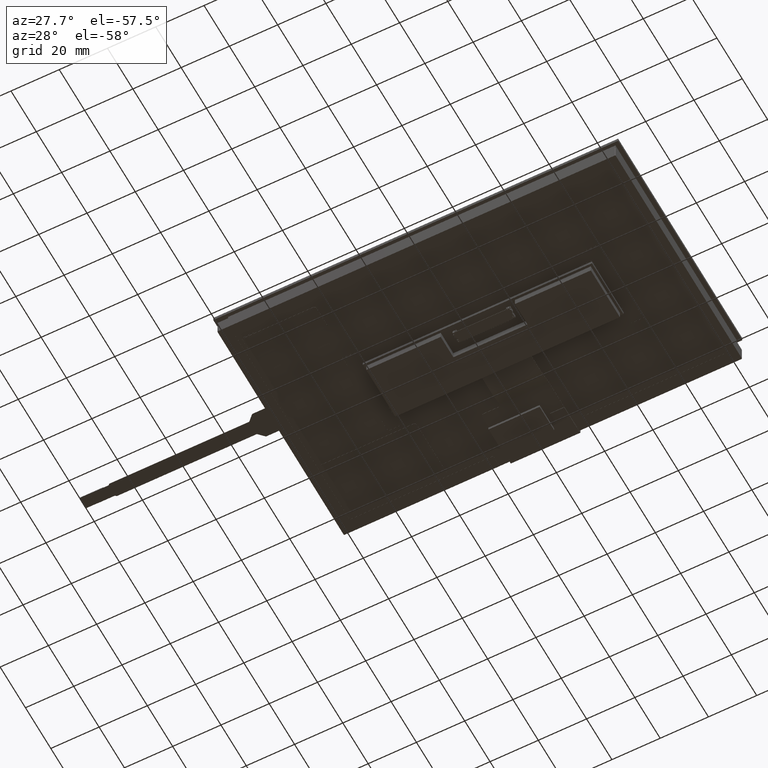
[diagram: clean part render]
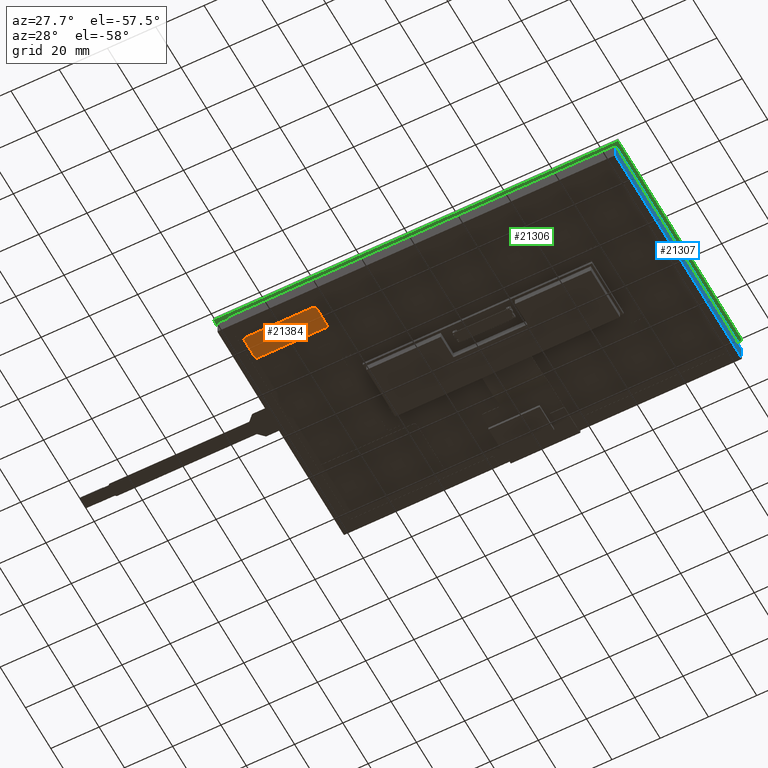
[diagram: same view with three faces highlighted in distinct colors, each labeled with its STEP entity id]
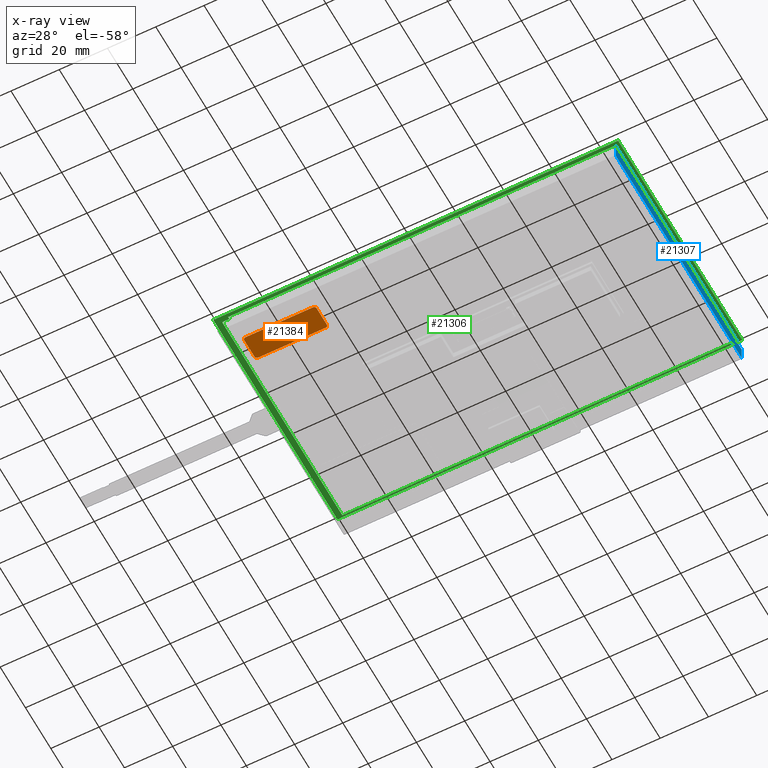
[diagram: x-ray of the same camera — body ghosted, the three highlighted faces saturated]
A machine part, auxiliary view with three faces highlighted in distinct colors.
The next image is the same camera in x-ray (body ghosted, the three faces saturated) — at least one of them is partly hidden behind the body in this view.
Their STEP definitions:

[orange] entity #21384 — the highlighted planar face has unit normal (0, 0, 1).
#145=CIRCLE('',#22569,1.);
#147=CIRCLE('',#22573,1.00000000000003);
#149=CIRCLE('',#22577,0.999999999999999);
#151=CIRCLE('',#22581,0.999999999999976);
#904=FACE_OUTER_BOUND('',#2050,.T.);
#2050=EDGE_LOOP('',(#14554,#14555,#14556,#14557,#14558,#14559,#14560,#14561));
#3422=LINE('',#30603,#6166);
#3426=LINE('',#30615,#6170);
#3430=LINE('',#30627,#6174);
#3433=LINE('',#30636,#6177);
#6166=VECTOR('',#24597,1000.);
#6170=VECTOR('',#24609,1000.);
#6174=VECTOR('',#24621,1000.);
#6177=VECTOR('',#24632,1000.);
#8839=VERTEX_POINT('',#30593);
#8840=VERTEX_POINT('',#30595);
#8842=VERTEX_POINT('',#30601);
#8844=VERTEX_POINT('',#30607);
#8846=VERTEX_POINT('',#30613);
#8848=VERTEX_POINT('',#30619);
#8850=VERTEX_POINT('',#30625);
#8852=VERTEX_POINT('',#30631);
#11034=EDGE_CURVE('',#8839,#8840,#145,.T.);
#11038=EDGE_CURVE('',#8842,#8839,#3422,.T.);
#11041=EDGE_CURVE('',#8844,#8842,#147,.T.);
#11044=EDGE_CURVE('',#8846,#8844,#3426,.T.);
#11047=EDGE_CURVE('',#8848,#8846,#149,.T.);
#11050=EDGE_CURVE('',#8850,#8848,#3430,.T.);
#11053=EDGE_CURVE('',#8852,#8850,#151,.T.);
#11055=EDGE_CURVE('',#8840,#8852,#3433,.T.);
#14554=ORIENTED_EDGE('',*,*,#11034,.F.);
#14555=ORIENTED_EDGE('',*,*,#11038,.F.);
#14556=ORIENTED_EDGE('',*,*,#11041,.F.);
#14557=ORIENTED_EDGE('',*,*,#11044,.F.);
#14558=ORIENTED_EDGE('',*,*,#11047,.F.);
#14559=ORIENTED_EDGE('',*,*,#11050,.F.);
#14560=ORIENTED_EDGE('',*,*,#11053,.F.);
#14561=ORIENTED_EDGE('',*,*,#11055,.F.);
#20447=PLANE('',#22583);
#21384=ADVANCED_FACE('',(#904),#20447,.F.);
#22569=AXIS2_PLACEMENT_3D('',#30596,#24590,#24591);
#22573=AXIS2_PLACEMENT_3D('',#30609,#24603,#24604);
#22577=AXIS2_PLACEMENT_3D('',#30621,#24615,#24616);
#22581=AXIS2_PLACEMENT_3D('',#30633,#24627,#24628);
#22583=AXIS2_PLACEMENT_3D('',#30637,#24633,#24634);
#24590=DIRECTION('center_axis',(0.,2.46519032881566E-32,1.));
#24591=DIRECTION('ref_axis',(-1.,9.09895546683146E-48,-2.24306570191573E-79));
#24597=DIRECTION('',(-9.09895546683146E-48,-1.,2.46519032881566E-32));
#24603=DIRECTION('center_axis',(0.,2.46519032881566E-32,1.));
#24604=DIRECTION('ref_axis',(-1.,9.09895546683146E-48,-2.24306570191573E-79));
#24609=DIRECTION('',(-1.,9.09895546683146E-48,-2.24306570191573E-79));
#24615=DIRECTION('center_axis',(0.,2.46519032881566E-32,1.));
#24616=DIRECTION('ref_axis',(-1.,9.09895546683146E-48,-2.24306570191573E-79));
#24621=DIRECTION('',(9.09895546683146E-48,1.,-2.46519032881566E-32));
#24627=DIRECTION('center_axis',(0.,2.46519032881566E-32,1.));
#24628=DIRECTION('ref_axis',(-1.,9.09895546683146E-48,-2.24306570191573E-79));
#24632=DIRECTION('',(1.,-9.09895546683146E-48,2.24306570191573E-79));
#24633=DIRECTION('center_axis',(0.,2.46519032881566E-32,1.));
#24634=DIRECTION('ref_axis',(-1.,9.09895546683146E-48,-2.24306570191573E-79));
#30593=CARTESIAN_POINT('',(-77.015,-39.64,-8.12500000000005));
#30595=CARTESIAN_POINT('',(-76.015,-40.64,-8.12500000000005));
#30596=CARTESIAN_POINT('Origin',(-76.015,-39.64,-8.12500000000005));
#30601=CARTESIAN_POINT('',(-77.015,-31.64,-8.12500000000005));
#30603=CARTESIAN_POINT('',(-77.015,-39.64,-8.12500000000005));
#30607=CARTESIAN_POINT('',(-76.015,-30.64,-8.12500000000005));
#30609=CARTESIAN_POINT('Origin',(-76.015,-31.64,-8.12500000000005));
#30613=CARTESIAN_POINT('',(-48.015,-30.64,-8.12500000000005));
#30615=CARTESIAN_POINT('',(-76.015,-30.64,-8.12500000000005));
#30619=CARTESIAN_POINT('',(-47.015,-31.64,-8.12500000000005));
#30621=CARTESIAN_POINT('Origin',(-48.015,-31.64,-8.12500000000005));
#30625=CARTESIAN_POINT('',(-47.015,-39.64,-8.12500000000005));
#30627=CARTESIAN_POINT('',(-47.015,-31.64,-8.12500000000005));
#30631=CARTESIAN_POINT('',(-48.015,-40.64,-8.12500000000005));
#30633=CARTESIAN_POINT('Origin',(-48.015,-39.64,-8.12500000000005));
#30636=CARTESIAN_POINT('',(-48.015,-40.64,-8.12500000000005));
#30637=CARTESIAN_POINT('Origin',(-76.015,-39.64,-8.12500000000005));

[blue] entity #21307 — the highlighted planar face has unit normal (1, -0, 0).
#827=FACE_OUTER_BOUND('',#1969,.T.);
#1969=EDGE_LOOP('',(#14151,#14152,#14153,#14154,#14155,#14156,#14157,#14158));
#3252=LINE('',#30210,#5996);
#3254=LINE('',#30214,#5998);
#3255=LINE('',#30216,#5999);
#3256=LINE('',#30218,#6000);
#3257=LINE('',#30220,#6001);
#3258=LINE('',#30222,#6002);
#3259=LINE('',#30224,#6003);
#3260=LINE('',#30225,#6004);
#5996=VECTOR('',#24237,10.);
#5998=VECTOR('',#24241,10.);
#5999=VECTOR('',#24242,10.);
#6000=VECTOR('',#24243,1000.);
#6001=VECTOR('',#24244,10.);
#6002=VECTOR('',#24245,1000.);
#6003=VECTOR('',#24246,1000.);
#6004=VECTOR('',#24247,10.);
#8713=VERTEX_POINT('',#30207);
#8714=VERTEX_POINT('',#30209);
#8715=VERTEX_POINT('',#30213);
#8716=VERTEX_POINT('',#30215);
#8717=VERTEX_POINT('',#30217);
#8718=VERTEX_POINT('',#30219);
#8719=VERTEX_POINT('',#30221);
#8720=VERTEX_POINT('',#30223);
#10844=EDGE_CURVE('',#8713,#8714,#3252,.T.);
#10846=EDGE_CURVE('',#8713,#8715,#3254,.T.);
#10847=EDGE_CURVE('',#8716,#8715,#3255,.T.);
#10848=EDGE_CURVE('',#8717,#8716,#3256,.T.);
#10849=EDGE_CURVE('',#8718,#8717,#3257,.T.);
#10850=EDGE_CURVE('',#8718,#8719,#3258,.T.);
#10851=EDGE_CURVE('',#8720,#8719,#3259,.T.);
#10852=EDGE_CURVE('',#8714,#8720,#3260,.T.);
#14151=ORIENTED_EDGE('',*,*,#10844,.F.);
#14152=ORIENTED_EDGE('',*,*,#10846,.T.);
#14153=ORIENTED_EDGE('',*,*,#10847,.F.);
#14154=ORIENTED_EDGE('',*,*,#10848,.F.);
#14155=ORIENTED_EDGE('',*,*,#10849,.F.);
#14156=ORIENTED_EDGE('',*,*,#10850,.T.);
#14157=ORIENTED_EDGE('',*,*,#10851,.F.);
#14158=ORIENTED_EDGE('',*,*,#10852,.F.);
#20385=PLANE('',#22476);
#21307=ADVANCED_FACE('',(#827),#20385,.T.);
#22476=AXIS2_PLACEMENT_3D('',#30212,#24239,#24240);
#24237=DIRECTION('',(9.09895546683142E-48,1.,0.));
#24239=DIRECTION('center_axis',(1.,-9.09895546683146E-48,2.24306570191573E-79));
#24240=DIRECTION('ref_axis',(0.,2.46519032881566E-32,1.));
#24241=DIRECTION('',(-2.46519032881566E-31,-4.93038065763133E-32,-1.));
#24242=DIRECTION('',(-9.09895546683141E-48,-1.,4.93038065763133E-32));
#24243=DIRECTION('',(0.,2.46519032881566E-32,1.));
#24244=DIRECTION('',(-9.09895546683146E-48,-1.,2.46519032881566E-32));
#24245=DIRECTION('',(0.,2.46519032881566E-32,1.));
#24246=DIRECTION('',(9.09895546683146E-48,1.,-2.46519032881566E-32));
#24247=DIRECTION('',(-2.46519032881566E-31,-4.93038065763133E-32,-1.));
#30207=CARTESIAN_POINT('',(80.985,-47.64,-1.4));
#30209=CARTESIAN_POINT('',(80.985,48.36,-1.4));
#30210=CARTESIAN_POINT('',(80.985,-22.32,-1.4));
#30212=CARTESIAN_POINT('Origin',(80.985,52.03,-8.02500000000003));
#30213=CARTESIAN_POINT('',(80.985,-47.64,-2.6));
#30214=CARTESIAN_POINT('',(80.985,-47.64,-1.4));
#30215=CARTESIAN_POINT('',(80.985,-47.31,-2.6));
#30216=CARTESIAN_POINT('',(80.985,-47.64,-2.6));
#30217=CARTESIAN_POINT('',(80.985,-47.31,-8.08000000000004));
#30218=CARTESIAN_POINT('',(80.985,-47.31,-8.02500000000003));
#30219=CARTESIAN_POINT('',(80.985,52.03,-8.08000000000004));
#30220=CARTESIAN_POINT('',(80.985,52.03,-8.08000000000004));
#30221=CARTESIAN_POINT('',(80.985,52.03,-2.27000000000001));
#30222=CARTESIAN_POINT('',(80.985,52.03,-8.02500000000003));
#30223=CARTESIAN_POINT('',(80.985,48.36,-2.27000000000001));
#30224=CARTESIAN_POINT('',(80.985,52.03,-2.27000000000001));
#30225=CARTESIAN_POINT('',(80.985,48.36,-1.4));

[green] entity #21306 — the highlighted planar face has unit normal (0, 0, -1).
#700=FACE_BOUND('',#1968,.T.);
#826=FACE_OUTER_BOUND('',#1967,.T.);
#1967=EDGE_LOOP('',(#14141,#14142,#14143,#14144));
#1968=EDGE_LOOP('',(#14145,#14146,#14147,#14148,#14149,#14150));
#3243=LINE('',#30192,#5987);
#3245=LINE('',#30197,#5989);
#3246=LINE('',#30199,#5990);
#3247=LINE('',#30201,#5991);
#3248=LINE('',#30202,#5992);
#3249=LINE('',#30204,#5993);
#3250=LINE('',#30206,#5994);
#3251=LINE('',#30208,#5995);
#3252=LINE('',#30210,#5996);
#3253=LINE('',#30211,#5997);
#5987=VECTOR('',#24226,10.);
#5989=VECTOR('',#24230,10.);
#5990=VECTOR('',#24231,10.);
#5991=VECTOR('',#24232,10.);
#5992=VECTOR('',#24233,10.);
#5993=VECTOR('',#24234,10.);
#5994=VECTOR('',#24235,10.);
#5995=VECTOR('',#24236,10.);
#5996=VECTOR('',#24237,10.);
#5997=VECTOR('',#24238,10.);
#8705=VERTEX_POINT('',#30189);
#8706=VERTEX_POINT('',#30191);
#8707=VERTEX_POINT('',#30195);
#8708=VERTEX_POINT('',#30196);
#8709=VERTEX_POINT('',#30198);
#8710=VERTEX_POINT('',#30200);
#8711=VERTEX_POINT('',#30203);
#8712=VERTEX_POINT('',#30205);
#8713=VERTEX_POINT('',#30207);
#8714=VERTEX_POINT('',#30209);
#10835=EDGE_CURVE('',#8706,#8705,#3243,.T.);
#10837=EDGE_CURVE('',#8707,#8708,#3245,.T.);
#10838=EDGE_CURVE('',#8708,#8709,#3246,.T.);
#10839=EDGE_CURVE('',#8709,#8710,#3247,.T.);
#10840=EDGE_CURVE('',#8710,#8707,#3248,.T.);
#10841=EDGE_CURVE('',#8711,#8706,#3249,.T.);
#10842=EDGE_CURVE('',#8705,#8712,#3250,.T.);
#10843=EDGE_CURVE('',#8712,#8713,#3251,.T.);
#10844=EDGE_CURVE('',#8713,#8714,#3252,.T.);
#10845=EDGE_CURVE('',#8714,#8711,#3253,.T.);
#14141=ORIENTED_EDGE('',*,*,#10837,.T.);
#14142=ORIENTED_EDGE('',*,*,#10838,.T.);
#14143=ORIENTED_EDGE('',*,*,#10839,.T.);
#14144=ORIENTED_EDGE('',*,*,#10840,.T.);
#14145=ORIENTED_EDGE('',*,*,#10841,.T.);
#14146=ORIENTED_EDGE('',*,*,#10835,.T.);
#14147=ORIENTED_EDGE('',*,*,#10842,.T.);
#14148=ORIENTED_EDGE('',*,*,#10843,.T.);
#14149=ORIENTED_EDGE('',*,*,#10844,.T.);
#14150=ORIENTED_EDGE('',*,*,#10845,.T.);
#20384=PLANE('',#22475);
#21306=ADVANCED_FACE('',(#826,#700),#20384,.T.);
#22475=AXIS2_PLACEMENT_3D('',#30194,#24228,#24229);
#24226=DIRECTION('',(1.,7.42461647718078E-16,0.));
#24228=DIRECTION('center_axis',(0.,0.,-1.));
#24229=DIRECTION('ref_axis',(-1.,1.20708053394536E-49,0.));
#24230=DIRECTION('',(1.,-1.20708053394536E-49,0.));
#24231=DIRECTION('',(-1.81260901979617E-16,-1.,0.));
#24232=DIRECTION('',(-1.,-1.05893105180343E-16,0.));
#24233=DIRECTION('',(1.20708053394536E-49,1.,0.));
#24234=DIRECTION('',(7.42461647718078E-16,-1.,0.));
#24235=DIRECTION('',(-9.09895546683142E-48,-1.,0.));
#24236=DIRECTION('',(1.,-9.09895546683141E-48,0.));
#24237=DIRECTION('',(9.09895546683142E-48,1.,0.));
#24238=DIRECTION('',(-1.,-1.08084999533074E-46,0.));
#30189=CARTESIAN_POINT('',(-79.5149999999999,-46.6399999999999,-1.4));
#30191=CARTESIAN_POINT('',(-82.5149999999999,-46.6399999999999,-1.4));
#30192=CARTESIAN_POINT('',(-40.295,-46.6399999999999,-1.4));
#30194=CARTESIAN_POINT('Origin',(-1.075,1.09129474195454E-49,-1.4));
#30195=CARTESIAN_POINT('',(-84.95,49.,-1.4));
#30196=CARTESIAN_POINT('',(82.8,49.,-1.4));
#30197=CARTESIAN_POINT('',(82.8,49.,-1.4));
#30198=CARTESIAN_POINT('',(82.8,-49.,-1.4));
#30199=CARTESIAN_POINT('',(82.8,-49.,-1.4));
#30200=CARTESIAN_POINT('',(-84.95,-49.,-1.4));
#30201=CARTESIAN_POINT('',(-84.95,-49.,-1.4));
#30202=CARTESIAN_POINT('',(-84.95,49.,-1.4));
#30203=CARTESIAN_POINT('',(-82.515,48.3599999999999,-1.39999999999999));
#30204=CARTESIAN_POINT('',(-82.515,22.6799999999999,-1.4));
#30205=CARTESIAN_POINT('',(-79.515,-47.64,-1.4));
#30206=CARTESIAN_POINT('',(-79.515,-23.82,-1.4));
#30207=CARTESIAN_POINT('',(80.985,-47.64,-1.4));
#30208=CARTESIAN_POINT('',(39.955,-47.64,-1.4));
#30209=CARTESIAN_POINT('',(80.985,48.36,-1.4));
#30210=CARTESIAN_POINT('',(80.985,-22.32,-1.4));
#30211=CARTESIAN_POINT('',(38.705,48.36,-1.4));